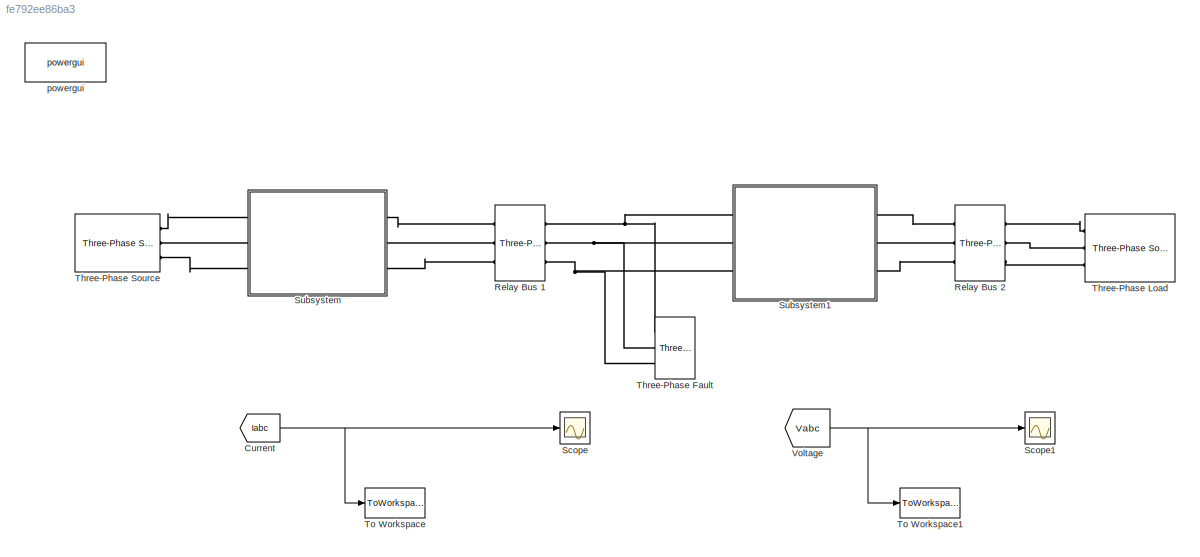
MODEL slx_fe792ee86ba3
KIND model
CONFIG AbsTol = auto
CONFIG EnableMultiTasking = off
CONFIG FixedStep = auto
CONFIG MaxStep = auto
CONFIG MinStep = auto
CONFIG RelTol = 1e-3
CONFIG SampleTimeConstraint = Unconstrained
CONFIG Solver = ode23tb
CONFIG SolverName = ode23tb
CONFIG StartTime = 0.0
CONFIG StopTime = 0.5
BLOCK [From] Current
  GotoTag = Iabc
  TagVisibility = global
BLOCK [Reference] Relay Bus 1  REF=powerlib/Measurements/Three-Phase
V-I Measurement
  Ports = [0, 0, 0, 0, 0, 3, 3]
  SourceBlock = powerlib/Measurements/Three-Phase\nV-I Measurement
  SourceProductBaseCode = PS
  SourceProductName = Simscape Power Systems
  SourceType = Three-Phase VI Measurement
BLOCK [Reference] Relay Bus 2   REF=powerlib/Measurements/Three-Phase
V-I Measurement
  Ports = [0, 0, 0, 0, 0, 3, 3]
  SourceBlock = powerlib/Measurements/Three-Phase\nV-I Measurement
  SourceProductBaseCode = PS
  SourceProductName = Simscape Power Systems
  SourceType = Three-Phase VI Measurement
BLOCK [Scope] Scope
  Floating = off
  NumInputPorts = 1
  Ports = [1]
  ScopeSpecificationString = Simulink.scopes.TimeScopeBlockCfg('CurrentConfiguration', extmgr.ConfigurationSet(extmgr.Configuration('Core','General UI',true,'DisplayFullSourceName',true),extmgr.Configuration('Core','Source UI',true),extmgr.Configuration('Sources','WiredSimulink',true,'DataLoggingVariableName','ScopeDataIabc','DataLogging',true),extmgr.Configuration('Visuals','Time Domain',true,'SerializedDisplays',{struct('Mi...<+1492ch>
BLOCK [Scope] Scope1
  Floating = off
  NumInputPorts = 1
  Ports = [1]
  ScopeSpecificationString = Simulink.scopes.TimeScopeBlockCfg('CurrentConfiguration', extmgr.ConfigurationSet(extmgr.Configuration('Core','General UI',true),extmgr.Configuration('Core','Source UI',true),extmgr.Configuration('Sources','WiredSimulink',true,'DataLoggingVariableName','ScopeData1','DataLogging',true),extmgr.Configuration('Visuals','Time Domain',true,'SerializedDisplays',{struct('MinYLimReal','-2.12593','MaxYLimRe...<+1454ch>
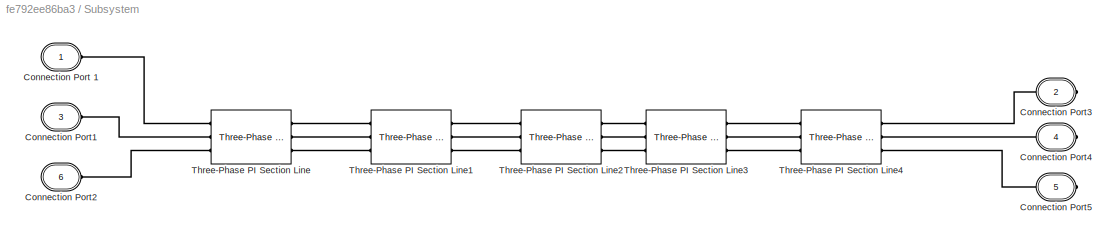
BLOCK [SubSystem] Subsystem
  Ports = [0, 0, 0, 0, 0, 3, 3]
  RequestExecContextInheritance = off
BLOCK [PMIOPort] Subsystem/Connection Port 1
  Side = Left
  Tag = PMCPort
BLOCK [PMIOPort] Subsystem/Connection Port1 
  Port = 3
  Side = Left
  Tag = PMCPort
BLOCK [PMIOPort] Subsystem/Connection Port2
  Port = 6
  Side = Left
  Tag = PMCPort
BLOCK [PMIOPort] Subsystem/Connection Port3
  Port = 2
  Side = Right
  Tag = PMCPort
BLOCK [PMIOPort] Subsystem/Connection Port4
  Port = 4
  Side = Right
  Tag = PMCPort
BLOCK [PMIOPort] Subsystem/Connection Port5
  Port = 5
  Side = Right
  Tag = PMCPort
BLOCK [Reference] Subsystem/Three-Phase PI Section Line  REF=powerlib/Elements/Three-Phase
PI Section Line
  AttributesFormatString = \n
  Ports = [0, 0, 0, 0, 0, 3, 3]
  SourceBlock = powerlib/Elements/Three-Phase\nPI Section Line
  SourceProductBaseCode = PS
  SourceProductName = Simscape Power Systems
  SourceType = Three-Phase PI Section Line
BLOCK [Reference] Subsystem/Three-Phase PI Section Line1  REF=powerlib/Elements/Three-Phase
PI Section Line
  AttributesFormatString = \n
  Ports = [0, 0, 0, 0, 0, 3, 3]
  SourceBlock = powerlib/Elements/Three-Phase\nPI Section Line
  SourceProductBaseCode = PS
  SourceProductName = Simscape Power Systems
  SourceType = Three-Phase PI Section Line
BLOCK [Reference] Subsystem/Three-Phase PI Section Line2  REF=powerlib/Elements/Three-Phase
PI Section Line
  AttributesFormatString = \n
  Ports = [0, 0, 0, 0, 0, 3, 3]
  SourceBlock = powerlib/Elements/Three-Phase\nPI Section Line
  SourceProductBaseCode = PS
  SourceProductName = Simscape Power Systems
  SourceType = Three-Phase PI Section Line
BLOCK [Reference] Subsystem/Three-Phase PI Section Line3  REF=powerlib/Elements/Three-Phase
PI Section Line
  AttributesFormatString = \n
  Ports = [0, 0, 0, 0, 0, 3, 3]
  SourceBlock = powerlib/Elements/Three-Phase\nPI Section Line
  SourceProductBaseCode = PS
  SourceProductName = Simscape Power Systems
  SourceType = Three-Phase PI Section Line
BLOCK [Reference] Subsystem/Three-Phase PI Section Line4  REF=powerlib/Elements/Three-Phase
PI Section Line
  AttributesFormatString = \n
  Ports = [0, 0, 0, 0, 0, 3, 3]
  SourceBlock = powerlib/Elements/Three-Phase\nPI Section Line
  SourceProductBaseCode = PS
  SourceProductName = Simscape Power Systems
  SourceType = Three-Phase PI Section Line
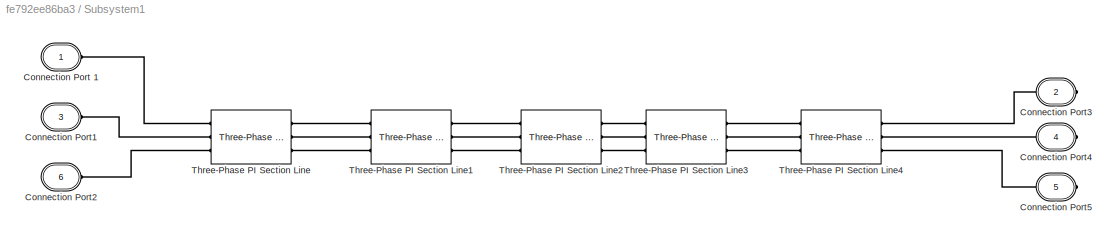
BLOCK [SubSystem] Subsystem1
  Ports = [0, 0, 0, 0, 0, 3, 3]
  RequestExecContextInheritance = off
BLOCK [PMIOPort] Subsystem1/Connection Port 1
  Side = Left
  Tag = PMCPort
BLOCK [PMIOPort] Subsystem1/Connection Port1 
  Port = 3
  Side = Left
  Tag = PMCPort
BLOCK [PMIOPort] Subsystem1/Connection Port2
  Port = 6
  Side = Left
  Tag = PMCPort
BLOCK [PMIOPort] Subsystem1/Connection Port3
  Port = 2
  Side = Right
  Tag = PMCPort
BLOCK [PMIOPort] Subsystem1/Connection Port4
  Port = 4
  Side = Right
  Tag = PMCPort
BLOCK [PMIOPort] Subsystem1/Connection Port5
  Port = 5
  Side = Right
  Tag = PMCPort
BLOCK [Reference] Subsystem1/Three-Phase PI Section Line  REF=powerlib/Elements/Three-Phase
PI Section Line
  AttributesFormatString = \n
  Ports = [0, 0, 0, 0, 0, 3, 3]
  SourceBlock = powerlib/Elements/Three-Phase\nPI Section Line
  SourceProductBaseCode = PS
  SourceProductName = Simscape Power Systems
  SourceType = Three-Phase PI Section Line
BLOCK [Reference] Subsystem1/Three-Phase PI Section Line1  REF=powerlib/Elements/Three-Phase
PI Section Line
  AttributesFormatString = \n
  Ports = [0, 0, 0, 0, 0, 3, 3]
  SourceBlock = powerlib/Elements/Three-Phase\nPI Section Line
  SourceProductBaseCode = PS
  SourceProductName = Simscape Power Systems
  SourceType = Three-Phase PI Section Line
BLOCK [Reference] Subsystem1/Three-Phase PI Section Line2  REF=powerlib/Elements/Three-Phase
PI Section Line
  AttributesFormatString = \n
  Ports = [0, 0, 0, 0, 0, 3, 3]
  SourceBlock = powerlib/Elements/Three-Phase\nPI Section Line
  SourceProductBaseCode = PS
  SourceProductName = Simscape Power Systems
  SourceType = Three-Phase PI Section Line
BLOCK [Reference] Subsystem1/Three-Phase PI Section Line3  REF=powerlib/Elements/Three-Phase
PI Section Line
  AttributesFormatString = \n
  Ports = [0, 0, 0, 0, 0, 3, 3]
  SourceBlock = powerlib/Elements/Three-Phase\nPI Section Line
  SourceProductBaseCode = PS
  SourceProductName = Simscape Power Systems
  SourceType = Three-Phase PI Section Line
BLOCK [Reference] Subsystem1/Three-Phase PI Section Line4  REF=powerlib/Elements/Three-Phase
PI Section Line
  AttributesFormatString = \n
  Ports = [0, 0, 0, 0, 0, 3, 3]
  SourceBlock = powerlib/Elements/Three-Phase\nPI Section Line
  SourceProductBaseCode = PS
  SourceProductName = Simscape Power Systems
  SourceType = Three-Phase PI Section Line
BLOCK [Reference] Three-Phase Fault  REF=powerlib/Elements/Three-Phase Fault
  Ports = [0, 0, 0, 0, 0, 3]
  SourceBlock = powerlib/Elements/Three-Phase Fault
  SourceProductBaseCode = PS
  SourceProductName = Simscape Power Systems
  SourceType = Three-Phase Fault
BLOCK [Reference] Three-Phase Load  REF=powerlib/Electrical
Sources/Three-Phase Source
  Ports = [0, 0, 0, 0, 0, 0, 3]
  SourceBlock = powerlib/Electrical\nSources/Three-Phase Source
  SourceProductBaseCode = PS
  SourceProductName = Simscape Power Systems
  SourceType = Three-Phase Source
BLOCK [Reference] Three-Phase Source  REF=powerlib/Electrical
Sources/Three-Phase Source
  Ports = [0, 0, 0, 0, 0, 0, 3]
  SourceBlock = powerlib/Electrical\nSources/Three-Phase Source
  SourceProductBaseCode = PS
  SourceProductName = Simscape Power Systems
  SourceType = Three-Phase Source
BLOCK [ToWorkspace] To Workspace
  MaxDataPoints = inf
  Ports = [1]
  Save2DSignal = 3-D array (concatenate along third dimension)
  SaveFormat = Timeseries
  VariableName = Iabc
BLOCK [ToWorkspace] To Workspace1
  FixptAsFi = on
  MaxDataPoints = inf
  Ports = [1]
  Save2DSignal = 3-D array (concatenate along third dimension)
  SaveFormat = Timeseries
  VariableName = Vabc
BLOCK [From] Voltage 
  GotoTag = Vabc
  TagVisibility = global
BLOCK [Reference] powergui  REF=powerlib/powergui
  Ports = []
  Priority = 1
  SourceBlock = powerlib/powergui
  SourceProductBaseCode = PS
  SourceProductName = Simscape Power Systems
  SourceType = PSB option menu block
NET Current:1 -> Scope:1, To Workspace:1
NET Voltage :1 -> Scope1:1, To Workspace1:1
PLINE Relay Bus 1:LConn1 -- Subsystem:RConn1
PLINE Relay Bus 1:LConn2 -- Subsystem:RConn2
PLINE Relay Bus 1:LConn3 -- Subsystem:RConn3
PNET net1: Relay Bus 1:RConn1 -- Subsystem1:LConn1 -- Three-Phase Fault:LConn1
PNET net2: Relay Bus 1:RConn2 -- Subsystem1:LConn2 -- Three-Phase Fault:LConn2
PNET net3: Relay Bus 1:RConn3 -- Subsystem1:LConn3 -- Three-Phase Fault:LConn3
PLINE Relay Bus 2 :LConn1 -- Subsystem1:RConn1
PLINE Relay Bus 2 :LConn2 -- Subsystem1:RConn2
PLINE Relay Bus 2 :LConn3 -- Subsystem1:RConn3
PLINE Relay Bus 2 :RConn1 -- Three-Phase Load:RConn1
PLINE Relay Bus 2 :RConn2 -- Three-Phase Load:RConn2
PLINE Relay Bus 2 :RConn3 -- Three-Phase Load:RConn3
PLINE Subsystem/Connection Port 1:RConn1 -- Subsystem/Three-Phase PI Section Line:LConn1
PLINE Subsystem/Connection Port1 :RConn1 -- Subsystem/Three-Phase PI Section Line:LConn2
PLINE Subsystem/Connection Port2:RConn1 -- Subsystem/Three-Phase PI Section Line:LConn3
PLINE Subsystem/Connection Port3:RConn1 -- Subsystem/Three-Phase PI Section Line4:RConn1
PLINE Subsystem/Connection Port4:RConn1 -- Subsystem/Three-Phase PI Section Line4:RConn2
PLINE Subsystem/Connection Port5:RConn1 -- Subsystem/Three-Phase PI Section Line4:RConn3
PLINE Subsystem/Three-Phase PI Section Line1:LConn1 -- Subsystem/Three-Phase PI Section Line:RConn1
PLINE Subsystem/Three-Phase PI Section Line1:LConn2 -- Subsystem/Three-Phase PI Section Line:RConn2
PLINE Subsystem/Three-Phase PI Section Line1:LConn3 -- Subsystem/Three-Phase PI Section Line:RConn3
PLINE Subsystem/Three-Phase PI Section Line1:RConn1 -- Subsystem/Three-Phase PI Section Line2:LConn1
PLINE Subsystem/Three-Phase PI Section Line1:RConn2 -- Subsystem/Three-Phase PI Section Line2:LConn2
PLINE Subsystem/Three-Phase PI Section Line1:RConn3 -- Subsystem/Three-Phase PI Section Line2:LConn3
PLINE Subsystem/Three-Phase PI Section Line2:RConn1 -- Subsystem/Three-Phase PI Section Line3:LConn1
PLINE Subsystem/Three-Phase PI Section Line2:RConn2 -- Subsystem/Three-Phase PI Section Line3:LConn2
PLINE Subsystem/Three-Phase PI Section Line2:RConn3 -- Subsystem/Three-Phase PI Section Line3:LConn3
PLINE Subsystem/Three-Phase PI Section Line3:RConn1 -- Subsystem/Three-Phase PI Section Line4:LConn1
PLINE Subsystem/Three-Phase PI Section Line3:RConn2 -- Subsystem/Three-Phase PI Section Line4:LConn2
PLINE Subsystem/Three-Phase PI Section Line3:RConn3 -- Subsystem/Three-Phase PI Section Line4:LConn3
PLINE Subsystem1/Connection Port 1:RConn1 -- Subsystem1/Three-Phase PI Section Line:LConn1
PLINE Subsystem1/Connection Port1 :RConn1 -- Subsystem1/Three-Phase PI Section Line:LConn2
PLINE Subsystem1/Connection Port2:RConn1 -- Subsystem1/Three-Phase PI Section Line:LConn3
PLINE Subsystem1/Connection Port3:RConn1 -- Subsystem1/Three-Phase PI Section Line4:RConn1
PLINE Subsystem1/Connection Port4:RConn1 -- Subsystem1/Three-Phase PI Section Line4:RConn2
PLINE Subsystem1/Connection Port5:RConn1 -- Subsystem1/Three-Phase PI Section Line4:RConn3
PLINE Subsystem1/Three-Phase PI Section Line1:LConn1 -- Subsystem1/Three-Phase PI Section Line:RConn1
PLINE Subsystem1/Three-Phase PI Section Line1:LConn2 -- Subsystem1/Three-Phase PI Section Line:RConn2
PLINE Subsystem1/Three-Phase PI Section Line1:LConn3 -- Subsystem1/Three-Phase PI Section Line:RConn3
PLINE Subsystem1/Three-Phase PI Section Line1:RConn1 -- Subsystem1/Three-Phase PI Section Line2:LConn1
PLINE Subsystem1/Three-Phase PI Section Line1:RConn2 -- Subsystem1/Three-Phase PI Section Line2:LConn2
PLINE Subsystem1/Three-Phase PI Section Line1:RConn3 -- Subsystem1/Three-Phase PI Section Line2:LConn3
PLINE Subsystem1/Three-Phase PI Section Line2:RConn1 -- Subsystem1/Three-Phase PI Section Line3:LConn1
PLINE Subsystem1/Three-Phase PI Section Line2:RConn2 -- Subsystem1/Three-Phase PI Section Line3:LConn2
PLINE Subsystem1/Three-Phase PI Section Line2:RConn3 -- Subsystem1/Three-Phase PI Section Line3:LConn3
PLINE Subsystem1/Three-Phase PI Section Line3:RConn1 -- Subsystem1/Three-Phase PI Section Line4:LConn1
PLINE Subsystem1/Three-Phase PI Section Line3:RConn2 -- Subsystem1/Three-Phase PI Section Line4:LConn2
PLINE Subsystem1/Three-Phase PI Section Line3:RConn3 -- Subsystem1/Three-Phase PI Section Line4:LConn3
PLINE Subsystem:LConn1 -- Three-Phase Source:RConn1
PLINE Subsystem:LConn2 -- Three-Phase Source:RConn2
PLINE Subsystem:LConn3 -- Three-Phase Source:RConn3
note: NET lines group one-source signal fan-out (src -> all destinations, sorted); 1:1 wires keep LINE; PNET lines group multi-terminal physical nets as a canonical sorted terminal list (undirected conserving connections); 2-terminal nets keep the pairwise PLINE form
